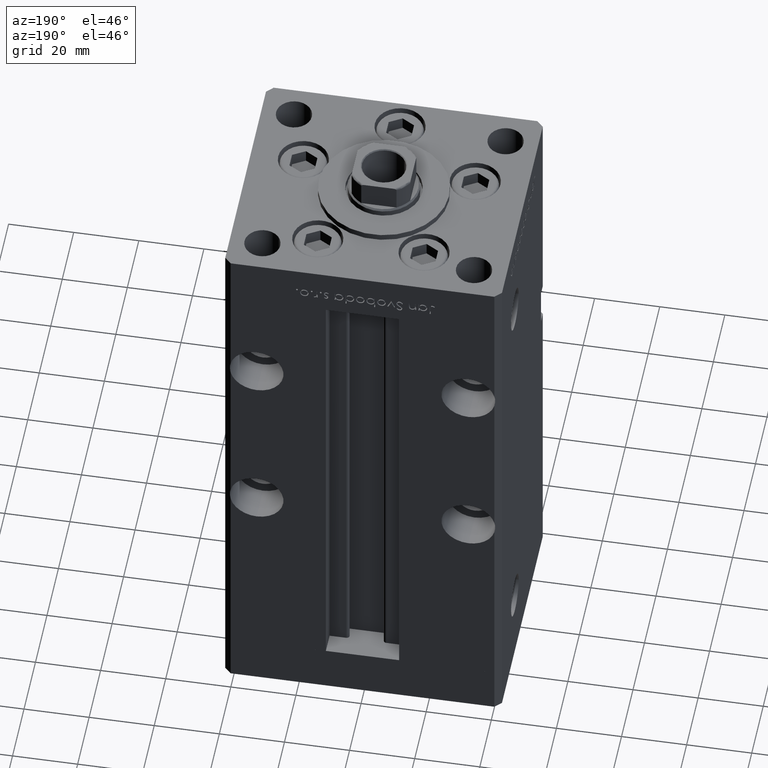
[diagram: clean part render]
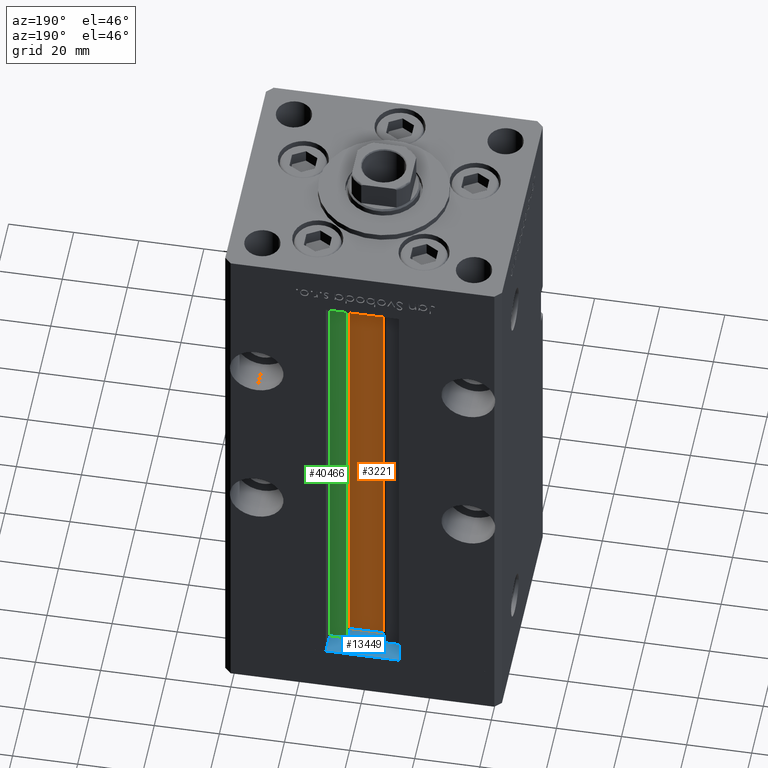
[diagram: same view with three faces highlighted in distinct colors, each labeled with its STEP entity id]
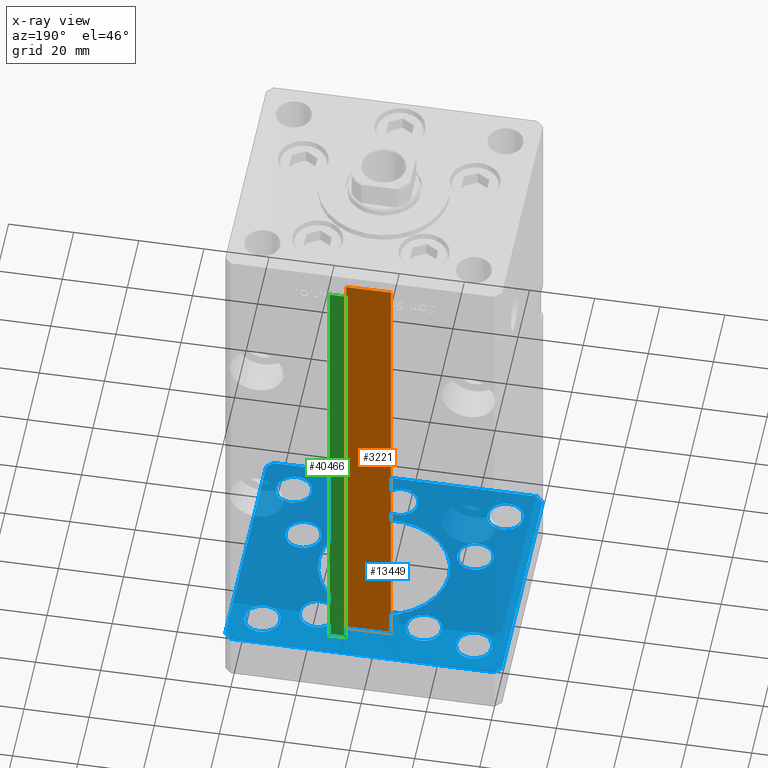
[diagram: x-ray of the same camera — body ghosted, the three highlighted faces saturated]
A machine part, auxiliary view with three faces highlighted in distinct colors.
The next image is the same camera in x-ray (body ghosted, the three faces saturated) — at least one of them is partly hidden behind the body in this view.
Their STEP definitions:

[orange] entity #3221 — the highlighted planar face has unit normal (0, -1, 0).
#1965 = AXIS2_PLACEMENT_3D ( 'NONE', #7142, #3381, #19766 ) ;
#3116 = PLANE ( 'NONE',  #1965 ) ;
#3221 = ADVANCED_FACE ( 'NONE', ( #15472 ), #3116, .F. ) ;
#3381 = DIRECTION ( 'NONE',  ( 0.000000000000000000, -1.000000000000000000, -0.000000000000000000 ) ) ;
#7142 = CARTESIAN_POINT ( 'NONE',  ( 6.876153656360465938, 26.99999999999986855, 0.000000000000000000 ) ) ;
#8519 = EDGE_CURVE ( 'NONE', #47161, #36686, #34158, .T. ) ;
#8551 = EDGE_LOOP ( 'NONE', ( #25001, #15233, #38067, #49871 ) ) ;
#10685 = CARTESIAN_POINT ( 'NONE',  ( -6.876153656360465938, 26.99999999999986855, 0.000000000000000000 ) ) ;
#13738 = DIRECTION ( 'NONE',  ( 1.000000000000000000, -0.000000000000000000, -0.000000000000000000 ) ) ;
#13891 = EDGE_CURVE ( 'NONE', #47161, #39126, #39971, .T. ) ;
#15233 = ORIENTED_EDGE ( 'NONE', *, *, #8519, .F. ) ;
#15472 = FACE_OUTER_BOUND ( 'NONE', #8551, .T. ) ;
#19592 = CARTESIAN_POINT ( 'NONE',  ( 0.000000000000000000, 26.99999999999986855, 148.5000000000000000 ) ) ;
#19766 = DIRECTION ( 'NONE',  ( 0.000000000000000000, 0.000000000000000000, -1.000000000000000000 ) ) ;
#20849 = EDGE_CURVE ( 'NONE', #36686, #45312, #39760, .T. ) ;
#20888 = EDGE_CURVE ( 'NONE', #45312, #39126, #24142, .T. ) ;
#24142 = LINE ( 'NONE', #19592, #28940 ) ;
#25001 = ORIENTED_EDGE ( 'NONE', *, *, #20849, .F. ) ;
#27357 = DIRECTION ( 'NONE',  ( -0.000000000000000000, -0.000000000000000000, 1.000000000000000000 ) ) ;
#28940 = VECTOR ( 'NONE', #40538, 1000.000000000000000 ) ;
#31384 = VECTOR ( 'NONE', #32213, 1000.000000000000000 ) ;
#32213 = DIRECTION ( 'NONE',  ( -0.000000000000000000, -0.000000000000000000, 1.000000000000000000 ) ) ;
#32478 = CARTESIAN_POINT ( 'NONE',  ( 6.876153656360465938, 26.99999999999986855, 0.000000000000000000 ) ) ;
#33402 = CARTESIAN_POINT ( 'NONE',  ( -6.876153656360465938, 26.99999999999986855, 148.5000000000000000 ) ) ;
#34158 = LINE ( 'NONE', #47607, #41425 ) ;
#36686 = VERTEX_POINT ( 'NONE', #49661 ) ;
#38067 = ORIENTED_EDGE ( 'NONE', *, *, #13891, .T. ) ;
#39126 = VERTEX_POINT ( 'NONE', #33402 ) ;
#39760 = LINE ( 'NONE', #32478, #31384 ) ;
#39971 = LINE ( 'NONE', #10685, #45047 ) ;
#40538 = DIRECTION ( 'NONE',  ( -1.000000000000000000, 0.000000000000000000, 0.000000000000000000 ) ) ;
#41425 = VECTOR ( 'NONE', #13738, 1000.000000000000000 ) ;
#45047 = VECTOR ( 'NONE', #27357, 1000.000000000000000 ) ;
#45312 = VERTEX_POINT ( 'NONE', #47719 ) ;
#47161 = VERTEX_POINT ( 'NONE', #47259 ) ;
#47259 = CARTESIAN_POINT ( 'NONE',  ( -6.876153656360465938, 26.99999999999986855, 0.000000000000000000 ) ) ;
#47607 = CARTESIAN_POINT ( 'NONE',  ( 6.876153656360465938, 26.99999999999986855, 0.000000000000000000 ) ) ;
#47719 = CARTESIAN_POINT ( 'NONE',  ( 6.876153656360465938, 26.99999999999986855, 148.5000000000000000 ) ) ;
#49661 = CARTESIAN_POINT ( 'NONE',  ( 6.876153656360465938, 26.99999999999986855, 0.000000000000000000 ) ) ;
#49871 = ORIENTED_EDGE ( 'NONE', *, *, #20888, .F. ) ;

[blue] entity #13449 — the highlighted planar face has unit normal (0, 0, -1).
#71 = CARTESIAN_POINT ( 'NONE',  ( -40.50000000000000711, 37.49999999999997868, -15.00000000000000000 ) ) ;
#168 = DIRECTION ( 'NONE',  ( -0.7071067811865474617, 0.7071067811865474617, 0.000000000000000000 ) ) ;
#336 = CARTESIAN_POINT ( 'NONE',  ( 42.49999999999992895, 35.50000000000000000, -15.00000000000000000 ) ) ;
#412 = ORIENTED_EDGE ( 'NONE', *, *, #7439, .F. ) ;
#471 = DIRECTION ( 'NONE',  ( 0.000000000000000000, -0.000000000000000000, -1.000000000000000000 ) ) ;
#621 = ORIENTED_EDGE ( 'NONE', *, *, #38611, .F. ) ;
#817 = CARTESIAN_POINT ( 'NONE',  ( -32.50000000000000000, -27.49999999999999645, -15.00000000000000000 ) ) ;
#1076 = VECTOR ( 'NONE', #12798, 1000.000000000000000 ) ;
#1219 = LINE ( 'NONE', #17616, #6239 ) ;
#1220 = CARTESIAN_POINT ( 'NONE',  ( -32.50000000000000000, 27.50000000000000355, -15.00000000000000000 ) ) ;
#1618 = LINE ( 'NONE', #18015, #14608 ) ;
#1663 = VERTEX_POINT ( 'NONE', #15310 ) ;
#2084 = CARTESIAN_POINT ( 'NONE',  ( -21.82291334290543361, 22.74999999999999645, -15.00000000000000000 ) ) ;
#2253 = EDGE_CURVE ( 'NONE', #6885, #38857, #28561, .T. ) ;
#2277 = EDGE_CURVE ( 'NONE', #35998, #2957, #33217, .T. ) ;
#2303 = CIRCLE ( 'NONE', #24625, 5.500000000000000000 ) ;
#2487 = VERTEX_POINT ( 'NONE', #29622 ) ;
#2957 = VERTEX_POINT ( 'NONE', #14153 ) ;
#2971 = EDGE_CURVE ( 'NONE', #14290, #3203, #8781, .T. ) ;
#3203 = VERTEX_POINT ( 'NONE', #43968 ) ;
#3382 = ORIENTED_EDGE ( 'NONE', *, *, #50705, .F. ) ;
#3496 = DIRECTION ( 'NONE',  ( 0.000000000000000000, -0.000000000000000000, -1.000000000000000000 ) ) ;
#3605 = DIRECTION ( 'NONE',  ( -0.000000000000000000, 0.000000000000000000, 1.000000000000000000 ) ) ;
#3708 = DIRECTION ( 'NONE',  ( 1.000000000000000000, 0.000000000000000000, 0.000000000000000000 ) ) ;
#3795 = VERTEX_POINT ( 'NONE', #6150 ) ;
#4017 = LINE ( 'NONE', #37314, #33647 ) ;
#4027 = CIRCLE ( 'NONE', #4866, 5.499999999999998224 ) ;
#4340 = DIRECTION ( 'NONE',  ( 0.7071067811865474617, 0.7071067811865474617, 0.000000000000000000 ) ) ;
#4448 = CARTESIAN_POINT ( 'NONE',  ( 26.39865316429776954, -9.333333333333330373, -15.00000000000000000 ) ) ;
#4545 = LINE ( 'NONE', #13398, #52584 ) ;
#4607 = CARTESIAN_POINT ( 'NONE',  ( 40.50000000000000000, -37.50000000000000711, -15.00000000000000000 ) ) ;
#4866 = AXIS2_PLACEMENT_3D ( 'NONE', #29860, #21517, #25816 ) ;
#4915 = EDGE_CURVE ( 'NONE', #3795, #11016, #7028, .T. ) ;
#5045 = CARTESIAN_POINT ( 'NONE',  ( -38.00000000000000000, 27.50000000000000355, -15.00000000000000000 ) ) ;
#5408 = CIRCLE ( 'NONE', #50033, 5.499999999999998224 ) ;
#5635 = DIRECTION ( 'NONE',  ( -1.000000000000000000, 0.000000000000000000, 0.000000000000000000 ) ) ;
#6150 = CARTESIAN_POINT ( 'NONE',  ( 31.89865316429776954, -9.333333333333330373, -15.00000000000000000 ) ) ;
#6239 = VECTOR ( 'NONE', #168, 1000.000000000000114 ) ;
#6276 = AXIS2_PLACEMENT_3D ( 'NONE', #35545, #51953, #52732 ) ;
#6556 = VERTEX_POINT ( 'NONE', #17298 ) ;
#6675 = CIRCLE ( 'NONE', #10109, 5.499999999999998224 ) ;
#6885 = VERTEX_POINT ( 'NONE', #36736 ) ;
#7028 = CIRCLE ( 'NONE', #30190, 5.499999999999998224 ) ;
#7111 = FACE_BOUND ( 'NONE', #48210, .T. ) ;
#7370 = FACE_BOUND ( 'NONE', #33155, .T. ) ;
#7439 = EDGE_CURVE ( 'NONE', #18980, #34877, #46541, .T. ) ;
#7519 = EDGE_CURVE ( 'NONE', #17666, #14233, #5408, .T. ) ;
#7573 = LINE ( 'NONE', #4607, #9735 ) ;
#7651 = AXIS2_PLACEMENT_3D ( 'NONE', #31368, #18479, #14184 ) ;
#7894 = FACE_OUTER_BOUND ( 'NONE', #36621, .T. ) ;
#8046 = CARTESIAN_POINT ( 'NONE',  ( -26.39865316429776954, -9.333333333333337478, -15.00000000000000000 ) ) ;
#8078 = CARTESIAN_POINT ( 'NONE',  ( -40.49999999999999289, -37.50000000000002132, -15.00000000000000000 ) ) ;
#8158 = FACE_BOUND ( 'NONE', #23549, .T. ) ;
#8363 = DIRECTION ( 'NONE',  ( 0.000000000000000000, -0.000000000000000000, -1.000000000000000000 ) ) ;
#8579 = EDGE_CURVE ( 'NONE', #39901, #34603, #15690, .T. ) ;
#8781 = CIRCLE ( 'NONE', #33675, 20.00000000000000000 ) ;
#8833 = DIRECTION ( 'NONE',  ( 1.000000000000000000, 1.713307136767217096E-16, 0.000000000000000000 ) ) ;
#8991 = DIRECTION ( 'NONE',  ( -1.000000000000000000, -3.426614273534436165E-16, 0.000000000000000000 ) ) ;
#9735 = VECTOR ( 'NONE', #4340, 1000.000000000000114 ) ;
#10109 = AXIS2_PLACEMENT_3D ( 'NONE', #20430, #36281, #52695 ) ;
#10172 = DIRECTION ( 'NONE',  ( 0.000000000000000000, -0.000000000000000000, -1.000000000000000000 ) ) ;
#10417 = CARTESIAN_POINT ( 'NONE',  ( -42.50000000000000711, 35.49999999999997158, -15.00000000000000000 ) ) ;
#10754 = EDGE_CURVE ( 'NONE', #52824, #37297, #7573, .T. ) ;
#10848 = VERTEX_POINT ( 'NONE', #50285 ) ;
#11016 = VERTEX_POINT ( 'NONE', #51491 ) ;
#11333 = CIRCLE ( 'NONE', #30209, 5.500000000000000000 ) ;
#11937 = FACE_BOUND ( 'NONE', #50580, .T. ) ;
#11950 = DIRECTION ( 'NONE',  ( 9.773090005503140331E-17, -1.000000000000000000, 0.000000000000000000 ) ) ;
#11992 = ORIENTED_EDGE ( 'NONE', *, *, #52051, .F. ) ;
#12177 = VERTEX_POINT ( 'NONE', #27769 ) ;
#12313 = VERTEX_POINT ( 'NONE', #336 ) ;
#12798 = DIRECTION ( 'NONE',  ( -0.7071067811865463515, -0.7071067811865487940, 0.000000000000000000 ) ) ;
#12849 = ORIENTED_EDGE ( 'NONE', *, *, #23903, .F. ) ;
#13009 = DIRECTION ( 'NONE',  ( 0.000000000000000000, -0.000000000000000000, -1.000000000000000000 ) ) ;
#13031 = CARTESIAN_POINT ( 'NONE',  ( 40.49999999999991473, 37.50000000000000711, -15.00000000000000000 ) ) ;
#13108 = ORIENTED_EDGE ( 'NONE', *, *, #19661, .F. ) ;
#13398 = CARTESIAN_POINT ( 'NONE',  ( 42.50000000000000711, -35.50000000000000000, -15.00000000000000000 ) ) ;
#13449 = ADVANCED_FACE ( 'NONE', ( #7370, #28610, #19734, #8158, #24556, #52527, #15701, #27542, #7894, #7111, #11937 ), #24026, .F. ) ;
#13455 = CIRCLE ( 'NONE', #40924, 5.499999999999998224 ) ;
#13542 = DIRECTION ( 'NONE',  ( 1.000000000000000000, 0.000000000000000000, 0.000000000000000000 ) ) ;
#13638 = CIRCLE ( 'NONE', #21349, 5.499999999999998224 ) ;
#14153 = CARTESIAN_POINT ( 'NONE',  ( -42.50000000000000711, 35.49999999999997158, -15.00000000000000000 ) ) ;
#14184 = DIRECTION ( 'NONE',  ( 1.000000000000000000, 0.000000000000000000, 0.000000000000000000 ) ) ;
#14233 = VERTEX_POINT ( 'NONE', #21063 ) ;
#14290 = VERTEX_POINT ( 'NONE', #33947 ) ;
#14608 = VECTOR ( 'NONE', #42462, 1000.000000000000000 ) ;
#15140 = DIRECTION ( 'NONE',  ( 0.000000000000000000, 0.000000000000000000, 1.000000000000000000 ) ) ;
#15183 = ORIENTED_EDGE ( 'NONE', *, *, #28781, .F. ) ;
#15310 = CARTESIAN_POINT ( 'NONE',  ( 27.00000000000000355, -27.49999999999999645, -15.00000000000000000 ) ) ;
#15627 = VECTOR ( 'NONE', #11950, 1000.000000000000000 ) ;
#15690 = CIRCLE ( 'NONE', #45737, 5.500000000000000000 ) ;
#15701 = FACE_BOUND ( 'NONE', #50396, .T. ) ;
#16299 = DIRECTION ( 'NONE',  ( 0.000000000000000000, -0.000000000000000000, -1.000000000000000000 ) ) ;
#16565 = CIRCLE ( 'NONE', #6276, 5.500000000000000000 ) ;
#17015 = ORIENTED_EDGE ( 'NONE', *, *, #52092, .F. ) ;
#17298 = CARTESIAN_POINT ( 'NONE',  ( -27.00000000000000355, -27.49999999999999645, -15.00000000000000000 ) ) ;
#17616 = CARTESIAN_POINT ( 'NONE',  ( 42.49999999999992895, 35.50000000000000000, -15.00000000000000000 ) ) ;
#17666 = VERTEX_POINT ( 'NONE', #49456 ) ;
#18015 = CARTESIAN_POINT ( 'NONE',  ( -42.50000000000000000, -35.50000000000000711, -15.00000000000000000 ) ) ;
#18197 = ORIENTED_EDGE ( 'NONE', *, *, #46888, .F. ) ;
#18479 = DIRECTION ( 'NONE',  ( 0.000000000000000000, -0.000000000000000000, -1.000000000000000000 ) ) ;
#18607 = AXIS2_PLACEMENT_3D ( 'NONE', #53168, #471, #3708 ) ;
#18980 = VERTEX_POINT ( 'NONE', #22306 ) ;
#19404 = EDGE_LOOP ( 'NONE', ( #32557, #47282 ) ) ;
#19583 = ORIENTED_EDGE ( 'NONE', *, *, #2253, .T. ) ;
#19661 = EDGE_CURVE ( 'NONE', #34603, #39901, #2303, .T. ) ;
#19734 = FACE_BOUND ( 'NONE', #19404, .T. ) ;
#20146 = AXIS2_PLACEMENT_3D ( 'NONE', #40421, #3605, #40951 ) ;
#20327 = EDGE_CURVE ( 'NONE', #14233, #17666, #4027, .T. ) ;
#20328 = CARTESIAN_POINT ( 'NONE',  ( -26.39865316429776954, -9.333333333333337478, -15.00000000000000000 ) ) ;
#20430 = CARTESIAN_POINT ( 'NONE',  ( -32.50000000000000000, -27.49999999999999645, -15.00000000000000000 ) ) ;
#20479 = CIRCLE ( 'NONE', #46221, 5.499999999999998224 ) ;
#20592 = DIRECTION ( 'NONE',  ( 1.000000000000000000, 0.000000000000000000, 0.000000000000000000 ) ) ;
#20757 = EDGE_LOOP ( 'NONE', ( #19583, #38793 ) ) ;
#21063 = CARTESIAN_POINT ( 'NONE',  ( 27.00000000000000355, 27.49999999999999645, -15.00000000000000000 ) ) ;
#21349 = AXIS2_PLACEMENT_3D ( 'NONE', #817, #42451, #5635 ) ;
#21366 = DIRECTION ( 'NONE',  ( 0.000000000000000000, -0.000000000000000000, -1.000000000000000000 ) ) ;
#21517 = DIRECTION ( 'NONE',  ( 0.000000000000000000, 0.000000000000000000, 1.000000000000000000 ) ) ;
#21626 = AXIS2_PLACEMENT_3D ( 'NONE', #47398, #35558, #44155 ) ;
#22212 = CARTESIAN_POINT ( 'NONE',  ( 32.50000000000000000, -27.49999999999999645, -15.00000000000000000 ) ) ;
#22268 = CIRCLE ( 'NONE', #7651, 5.499999999999998224 ) ;
#22306 = CARTESIAN_POINT ( 'NONE',  ( 10.82291334290542473, 22.75000000000000000, -15.00000000000000000 ) ) ;
#22945 = VERTEX_POINT ( 'NONE', #32031 ) ;
#23549 = EDGE_LOOP ( 'NONE', ( #30550, #38221 ) ) ;
#23737 = CIRCLE ( 'NONE', #46076, 20.00000000000000000 ) ;
#23903 = EDGE_CURVE ( 'NONE', #3203, #14290, #23737, .T. ) ;
#24026 = PLANE ( 'NONE',  #20146 ) ;
#24153 = EDGE_CURVE ( 'NONE', #34877, #18980, #33183, .T. ) ;
#24556 = FACE_BOUND ( 'NONE', #43729, .T. ) ;
#24621 = DIRECTION ( 'NONE',  ( 0.000000000000000000, 0.000000000000000000, 1.000000000000000000 ) ) ;
#24625 = AXIS2_PLACEMENT_3D ( 'NONE', #25808, #8363, #42200 ) ;
#25808 = CARTESIAN_POINT ( 'NONE',  ( -16.32291334290543006, 22.74999999999999645, -15.00000000000000000 ) ) ;
#25816 = DIRECTION ( 'NONE',  ( 1.000000000000000000, 0.000000000000000000, 0.000000000000000000 ) ) ;
#26107 = CARTESIAN_POINT ( 'NONE',  ( -10.82291334290543183, 22.74999999999999645, -15.00000000000000000 ) ) ;
#26245 = DIRECTION ( 'NONE',  ( -0.000000000000000000, -0.000000000000000000, -1.000000000000000000 ) ) ;
#26501 = AXIS2_PLACEMENT_3D ( 'NONE', #46070, #50365, #51706 ) ;
#27206 = EDGE_LOOP ( 'NONE', ( #18197, #28801 ) ) ;
#27385 = CARTESIAN_POINT ( 'NONE',  ( 42.50000000000000711, -35.50000000000000000, -15.00000000000000000 ) ) ;
#27542 = FACE_BOUND ( 'NONE', #20757, .T. ) ;
#27591 = ORIENTED_EDGE ( 'NONE', *, *, #33486, .F. ) ;
#27769 = CARTESIAN_POINT ( 'NONE',  ( -20.89865316429777309, -9.333333333333337478, -15.00000000000000000 ) ) ;
#27977 = VERTEX_POINT ( 'NONE', #29615 ) ;
#28561 = CIRCLE ( 'NONE', #37098, 5.499999999999998224 ) ;
#28610 = FACE_BOUND ( 'NONE', #27206, .T. ) ;
#28702 = CARTESIAN_POINT ( 'NONE',  ( 40.49999999999991473, 37.50000000000000711, -15.00000000000000000 ) ) ;
#28781 = EDGE_CURVE ( 'NONE', #1663, #10848, #13455, .T. ) ;
#28801 = ORIENTED_EDGE ( 'NONE', *, *, #44593, .F. ) ;
#29016 = DIRECTION ( 'NONE',  ( 0.000000000000000000, -0.000000000000000000, -1.000000000000000000 ) ) ;
#29294 = AXIS2_PLACEMENT_3D ( 'NONE', #20328, #16299, #20592 ) ;
#29615 = CARTESIAN_POINT ( 'NONE',  ( 5.500000000000003553, -28.00000000000000000, -15.00000000000000000 ) ) ;
#29622 = CARTESIAN_POINT ( 'NONE',  ( -38.00000000000000000, -27.49999999999999645, -15.00000000000000000 ) ) ;
#29636 = ORIENTED_EDGE ( 'NONE', *, *, #42205, .F. ) ;
#29770 = ORIENTED_EDGE ( 'NONE', *, *, #8579, .F. ) ;
#29860 = CARTESIAN_POINT ( 'NONE',  ( 32.50000000000000000, 27.49999999999999645, -15.00000000000000000 ) ) ;
#29936 = CARTESIAN_POINT ( 'NONE',  ( 3.429011037612589276E-15, -28.00000000000000000, -15.00000000000000000 ) ) ;
#30190 = AXIS2_PLACEMENT_3D ( 'NONE', #4448, #21366, #33991 ) ;
#30209 = AXIS2_PLACEMENT_3D ( 'NONE', #29936, #13009, #13542 ) ;
#30540 = CARTESIAN_POINT ( 'NONE',  ( 0.000000000000000000, 0.000000000000000000, -15.00000000000000000 ) ) ;
#30550 = ORIENTED_EDGE ( 'NONE', *, *, #4915, .F. ) ;
#30703 = EDGE_CURVE ( 'NONE', #2487, #6556, #6675, .T. ) ;
#31368 = CARTESIAN_POINT ( 'NONE',  ( 26.39865316429776954, -9.333333333333330373, -15.00000000000000000 ) ) ;
#31462 = DIRECTION ( 'NONE',  ( 1.000000000000000000, 0.000000000000000000, 0.000000000000000000 ) ) ;
#31525 = DIRECTION ( 'NONE',  ( 1.000000000000000000, 0.000000000000000000, 0.000000000000000000 ) ) ;
#31664 = CARTESIAN_POINT ( 'NONE',  ( 0.000000000000000000, 0.000000000000000000, -15.00000000000000000 ) ) ;
#31891 = CIRCLE ( 'NONE', #38753, 5.499999999999998224 ) ;
#31927 = ORIENTED_EDGE ( 'NONE', *, *, #10754, .F. ) ;
#32031 = CARTESIAN_POINT ( 'NONE',  ( -5.499999999999996447, -28.00000000000000000, -15.00000000000000000 ) ) ;
#32557 = ORIENTED_EDGE ( 'NONE', *, *, #47657, .F. ) ;
#32709 = CIRCLE ( 'NONE', #29294, 5.499999999999998224 ) ;
#33155 = EDGE_LOOP ( 'NONE', ( #12849, #46647 ) ) ;
#33183 = CIRCLE ( 'NONE', #18607, 5.500000000000001776 ) ;
#33217 = LINE ( 'NONE', #41273, #1076 ) ;
#33416 = EDGE_CURVE ( 'NONE', #38857, #6885, #20479, .T. ) ;
#33486 = EDGE_CURVE ( 'NONE', #10848, #1663, #44497, .T. ) ;
#33647 = VECTOR ( 'NONE', #8833, 1000.000000000000000 ) ;
#33675 = AXIS2_PLACEMENT_3D ( 'NONE', #30540, #42626, #39125 ) ;
#33837 = DIRECTION ( 'NONE',  ( -1.172770800660376741E-15, 1.000000000000000000, 0.000000000000000000 ) ) ;
#33947 = CARTESIAN_POINT ( 'NONE',  ( -20.00000000000000000, 2.449293598294706513E-15, -15.00000000000000000 ) ) ;
#33989 = VERTEX_POINT ( 'NONE', #49655 ) ;
#33991 = DIRECTION ( 'NONE',  ( 1.000000000000000000, 0.000000000000000000, 0.000000000000000000 ) ) ;
#34037 = ORIENTED_EDGE ( 'NONE', *, *, #30703, .F. ) ;
#34603 = VERTEX_POINT ( 'NONE', #26107 ) ;
#34877 = VERTEX_POINT ( 'NONE', #52286 ) ;
#35545 = CARTESIAN_POINT ( 'NONE',  ( 3.429011037612589276E-15, -28.00000000000000000, -15.00000000000000000 ) ) ;
#35558 = DIRECTION ( 'NONE',  ( 0.000000000000000000, -0.000000000000000000, -1.000000000000000000 ) ) ;
#35998 = VERTEX_POINT ( 'NONE', #71 ) ;
#36281 = DIRECTION ( 'NONE',  ( -0.000000000000000000, -0.000000000000000000, -1.000000000000000000 ) ) ;
#36621 = EDGE_LOOP ( 'NONE', ( #29636, #3382, #49629, #38491, #52496, #11992, #31927, #17015 ) ) ;
#36736 = CARTESIAN_POINT ( 'NONE',  ( -27.00000000000000355, 27.50000000000000355, -15.00000000000000000 ) ) ;
#37098 = AXIS2_PLACEMENT_3D ( 'NONE', #1220, #24621, #46112 ) ;
#37297 = VERTEX_POINT ( 'NONE', #27385 ) ;
#37314 = CARTESIAN_POINT ( 'NONE',  ( -40.49999999999999289, -37.50000000000002132, -15.00000000000000000 ) ) ;
#37814 = CARTESIAN_POINT ( 'NONE',  ( -31.89865316429776954, -9.333333333333337478, -15.00000000000000000 ) ) ;
#37950 = EDGE_CURVE ( 'NONE', #53135, #35998, #49861, .T. ) ;
#37982 = CARTESIAN_POINT ( 'NONE',  ( -32.50000000000000000, 27.50000000000000355, -15.00000000000000000 ) ) ;
#38221 = ORIENTED_EDGE ( 'NONE', *, *, #39878, .F. ) ;
#38262 = EDGE_LOOP ( 'NONE', ( #13108, #29770 ) ) ;
#38491 = ORIENTED_EDGE ( 'NONE', *, *, #37950, .F. ) ;
#38595 = DIRECTION ( 'NONE',  ( -1.000000000000000000, 0.000000000000000000, 0.000000000000000000 ) ) ;
#38611 = EDGE_CURVE ( 'NONE', #6556, #2487, #13638, .T. ) ;
#38753 = AXIS2_PLACEMENT_3D ( 'NONE', #8046, #29016, #49173 ) ;
#38793 = ORIENTED_EDGE ( 'NONE', *, *, #33416, .T. ) ;
#38857 = VERTEX_POINT ( 'NONE', #5045 ) ;
#38931 = VERTEX_POINT ( 'NONE', #37814 ) ;
#39125 = DIRECTION ( 'NONE',  ( 1.000000000000000000, 0.000000000000000000, 0.000000000000000000 ) ) ;
#39878 = EDGE_CURVE ( 'NONE', #11016, #3795, #22268, .T. ) ;
#39901 = VERTEX_POINT ( 'NONE', #2084 ) ;
#40421 = CARTESIAN_POINT ( 'NONE',  ( 0.000000000000000000, 0.000000000000000000, -15.00000000000000000 ) ) ;
#40924 = AXIS2_PLACEMENT_3D ( 'NONE', #22212, #26245, #38595 ) ;
#40951 = DIRECTION ( 'NONE',  ( 1.000000000000000000, 0.000000000000000000, 0.000000000000000000 ) ) ;
#41273 = CARTESIAN_POINT ( 'NONE',  ( -40.50000000000000711, 37.49999999999997868, -15.00000000000000000 ) ) ;
#42200 = DIRECTION ( 'NONE',  ( 1.000000000000000000, 0.000000000000000000, 0.000000000000000000 ) ) ;
#42205 = EDGE_CURVE ( 'NONE', #33989, #43270, #1618, .T. ) ;
#42440 = ORIENTED_EDGE ( 'NONE', *, *, #24153, .F. ) ;
#42451 = DIRECTION ( 'NONE',  ( -0.000000000000000000, -0.000000000000000000, -1.000000000000000000 ) ) ;
#42462 = DIRECTION ( 'NONE',  ( 0.7071067811865463515, -0.7071067811865487940, 0.000000000000000000 ) ) ;
#42626 = DIRECTION ( 'NONE',  ( 0.000000000000000000, -0.000000000000000000, -1.000000000000000000 ) ) ;
#42840 = VECTOR ( 'NONE', #8991, 1000.000000000000000 ) ;
#42872 = ORIENTED_EDGE ( 'NONE', *, *, #20327, .T. ) ;
#43270 = VERTEX_POINT ( 'NONE', #8078 ) ;
#43634 = CARTESIAN_POINT ( 'NONE',  ( 40.50000000000000000, -37.50000000000000711, -15.00000000000000000 ) ) ;
#43714 = ORIENTED_EDGE ( 'NONE', *, *, #7519, .T. ) ;
#43729 = EDGE_LOOP ( 'NONE', ( #42440, #412 ) ) ;
#43888 = CARTESIAN_POINT ( 'NONE',  ( 32.50000000000000000, 27.49999999999999645, -15.00000000000000000 ) ) ;
#43968 = CARTESIAN_POINT ( 'NONE',  ( 20.00000000000000000, 0.000000000000000000, -15.00000000000000000 ) ) ;
#44155 = DIRECTION ( 'NONE',  ( 1.000000000000000000, 0.000000000000000000, 0.000000000000000000 ) ) ;
#44497 = CIRCLE ( 'NONE', #26501, 5.499999999999998224 ) ;
#44593 = EDGE_CURVE ( 'NONE', #38931, #12177, #32709, .T. ) ;
#44617 = CARTESIAN_POINT ( 'NONE',  ( -16.32291334290543006, 22.74999999999999645, -15.00000000000000000 ) ) ;
#44738 = LINE ( 'NONE', #10417, #15627 ) ;
#45737 = AXIS2_PLACEMENT_3D ( 'NONE', #44617, #3496, #31462 ) ;
#46070 = CARTESIAN_POINT ( 'NONE',  ( 32.50000000000000000, -27.49999999999999645, -15.00000000000000000 ) ) ;
#46076 = AXIS2_PLACEMENT_3D ( 'NONE', #31664, #10172, #48073 ) ;
#46112 = DIRECTION ( 'NONE',  ( 1.000000000000000000, 0.000000000000000000, 0.000000000000000000 ) ) ;
#46221 = AXIS2_PLACEMENT_3D ( 'NONE', #37982, #47134, #46335 ) ;
#46335 = DIRECTION ( 'NONE',  ( 1.000000000000000000, 0.000000000000000000, 0.000000000000000000 ) ) ;
#46541 = CIRCLE ( 'NONE', #21626, 5.500000000000001776 ) ;
#46647 = ORIENTED_EDGE ( 'NONE', *, *, #2971, .F. ) ;
#46888 = EDGE_CURVE ( 'NONE', #12177, #38931, #31891, .T. ) ;
#47134 = DIRECTION ( 'NONE',  ( 0.000000000000000000, 0.000000000000000000, 1.000000000000000000 ) ) ;
#47282 = ORIENTED_EDGE ( 'NONE', *, *, #49303, .F. ) ;
#47398 = CARTESIAN_POINT ( 'NONE',  ( 16.32291334290542295, 22.75000000000000000, -15.00000000000000000 ) ) ;
#47657 = EDGE_CURVE ( 'NONE', #27977, #22945, #11333, .T. ) ;
#48073 = DIRECTION ( 'NONE',  ( 1.000000000000000000, 0.000000000000000000, 0.000000000000000000 ) ) ;
#48210 = EDGE_LOOP ( 'NONE', ( #27591, #15183 ) ) ;
#48912 = EDGE_CURVE ( 'NONE', #12313, #53135, #1219, .T. ) ;
#49173 = DIRECTION ( 'NONE',  ( 1.000000000000000000, 0.000000000000000000, 0.000000000000000000 ) ) ;
#49303 = EDGE_CURVE ( 'NONE', #22945, #27977, #16565, .T. ) ;
#49456 = CARTESIAN_POINT ( 'NONE',  ( 38.00000000000000000, 27.49999999999999645, -15.00000000000000000 ) ) ;
#49629 = ORIENTED_EDGE ( 'NONE', *, *, #2277, .F. ) ;
#49655 = CARTESIAN_POINT ( 'NONE',  ( -42.50000000000000000, -35.50000000000000711, -15.00000000000000000 ) ) ;
#49861 = LINE ( 'NONE', #13031, #42840 ) ;
#50033 = AXIS2_PLACEMENT_3D ( 'NONE', #43888, #15140, #31525 ) ;
#50285 = CARTESIAN_POINT ( 'NONE',  ( 38.00000000000000000, -27.49999999999999645, -15.00000000000000000 ) ) ;
#50365 = DIRECTION ( 'NONE',  ( -0.000000000000000000, -0.000000000000000000, -1.000000000000000000 ) ) ;
#50396 = EDGE_LOOP ( 'NONE', ( #43714, #42872 ) ) ;
#50580 = EDGE_LOOP ( 'NONE', ( #621, #34037 ) ) ;
#50705 = EDGE_CURVE ( 'NONE', #2957, #33989, #44738, .T. ) ;
#51491 = CARTESIAN_POINT ( 'NONE',  ( 20.89865316429777309, -9.333333333333330373, -15.00000000000000000 ) ) ;
#51706 = DIRECTION ( 'NONE',  ( -1.000000000000000000, 0.000000000000000000, 0.000000000000000000 ) ) ;
#51953 = DIRECTION ( 'NONE',  ( 0.000000000000000000, -0.000000000000000000, -1.000000000000000000 ) ) ;
#52051 = EDGE_CURVE ( 'NONE', #37297, #12313, #4545, .T. ) ;
#52092 = EDGE_CURVE ( 'NONE', #43270, #52824, #4017, .T. ) ;
#52286 = CARTESIAN_POINT ( 'NONE',  ( 21.82291334290542650, 22.75000000000000000, -15.00000000000000000 ) ) ;
#52496 = ORIENTED_EDGE ( 'NONE', *, *, #48912, .F. ) ;
#52527 = FACE_BOUND ( 'NONE', #38262, .T. ) ;
#52584 = VECTOR ( 'NONE', #33837, 1000.000000000000000 ) ;
#52695 = DIRECTION ( 'NONE',  ( -1.000000000000000000, 0.000000000000000000, 0.000000000000000000 ) ) ;
#52732 = DIRECTION ( 'NONE',  ( 1.000000000000000000, 0.000000000000000000, 0.000000000000000000 ) ) ;
#52824 = VERTEX_POINT ( 'NONE', #43634 ) ;
#53135 = VERTEX_POINT ( 'NONE', #28702 ) ;
#53168 = CARTESIAN_POINT ( 'NONE',  ( 16.32291334290542295, 22.75000000000000000, -15.00000000000000000 ) ) ;

[green] entity #40466 — the highlighted planar face has unit normal (0, -1, 0).
#714 = DIRECTION ( 'NONE',  ( -0.000000000000000000, -0.000000000000000000, 1.000000000000000000 ) ) ;
#1279 = LINE ( 'NONE', #9060, #11078 ) ;
#5703 = ORIENTED_EDGE ( 'NONE', *, *, #37784, .F. ) ;
#6897 = DIRECTION ( 'NONE',  ( 1.000000000000000000, 0.000000000000000000, 0.000000000000000000 ) ) ;
#8731 = ORIENTED_EDGE ( 'NONE', *, *, #15419, .F. ) ;
#8998 = ORIENTED_EDGE ( 'NONE', *, *, #38885, .T. ) ;
#9060 = CARTESIAN_POINT ( 'NONE',  ( 6.183333333333997928, 31.00000000000000000, 0.000000000000000000 ) ) ;
#11067 = CARTESIAN_POINT ( 'NONE',  ( 11.24999999999999822, 31.00000000000000000, 0.000000000000000000 ) ) ;
#11078 = VECTOR ( 'NONE', #17411, 1000.000000000000000 ) ;
#11156 = CARTESIAN_POINT ( 'NONE',  ( 6.183333333333997928, 31.00000000000000000, 0.000000000000000000 ) ) ;
#11243 = FACE_OUTER_BOUND ( 'NONE', #26543, .T. ) ;
#11886 = VECTOR ( 'NONE', #38781, 1000.000000000000000 ) ;
#14680 = CARTESIAN_POINT ( 'NONE',  ( 6.183333333333997928, 31.00000000000000000, 148.5000000000000000 ) ) ;
#15419 = EDGE_CURVE ( 'NONE', #38409, #46775, #37511, .T. ) ;
#17411 = DIRECTION ( 'NONE',  ( -0.000000000000000000, -0.000000000000000000, 1.000000000000000000 ) ) ;
#21420 = AXIS2_PLACEMENT_3D ( 'NONE', #32467, #27652, #52378 ) ;
#22393 = LINE ( 'NONE', #34764, #11886 ) ;
#24404 = PLANE ( 'NONE',  #21420 ) ;
#26543 = EDGE_LOOP ( 'NONE', ( #8731, #5703, #8998, #29238 ) ) ;
#27652 = DIRECTION ( 'NONE',  ( 0.000000000000000000, -1.000000000000000000, 0.000000000000000000 ) ) ;
#28115 = CARTESIAN_POINT ( 'NONE',  ( 6.183333333333997928, 31.00000000000000000, 0.000000000000000000 ) ) ;
#29238 = ORIENTED_EDGE ( 'NONE', *, *, #33452, .F. ) ;
#32467 = CARTESIAN_POINT ( 'NONE',  ( 6.183333333333997928, 31.00000000000000000, 0.000000000000000000 ) ) ;
#33452 = EDGE_CURVE ( 'NONE', #46775, #34053, #22393, .T. ) ;
#34053 = VERTEX_POINT ( 'NONE', #14680 ) ;
#34764 = CARTESIAN_POINT ( 'NONE',  ( 0.000000000000000000, 31.00000000000000000, 148.5000000000000000 ) ) ;
#34864 = VERTEX_POINT ( 'NONE', #11156 ) ;
#37511 = LINE ( 'NONE', #49895, #38191 ) ;
#37784 = EDGE_CURVE ( 'NONE', #34864, #38409, #43453, .T. ) ;
#38191 = VECTOR ( 'NONE', #714, 1000.000000000000000 ) ;
#38409 = VERTEX_POINT ( 'NONE', #11067 ) ;
#38781 = DIRECTION ( 'NONE',  ( -1.000000000000000000, 0.000000000000000000, 0.000000000000000000 ) ) ;
#38885 = EDGE_CURVE ( 'NONE', #34864, #34053, #1279, .T. ) ;
#40466 = ADVANCED_FACE ( 'NONE', ( #11243 ), #24404, .F. ) ;
#41945 = VECTOR ( 'NONE', #6897, 1000.000000000000000 ) ;
#42816 = CARTESIAN_POINT ( 'NONE',  ( 11.24999999999999822, 31.00000000000000000, 148.5000000000000000 ) ) ;
#43453 = LINE ( 'NONE', #28115, #41945 ) ;
#46775 = VERTEX_POINT ( 'NONE', #42816 ) ;
#49895 = CARTESIAN_POINT ( 'NONE',  ( 11.24999999999999822, 31.00000000000000000, 0.000000000000000000 ) ) ;
#52378 = DIRECTION ( 'NONE',  ( 0.000000000000000000, -0.000000000000000000, -1.000000000000000000 ) ) ;